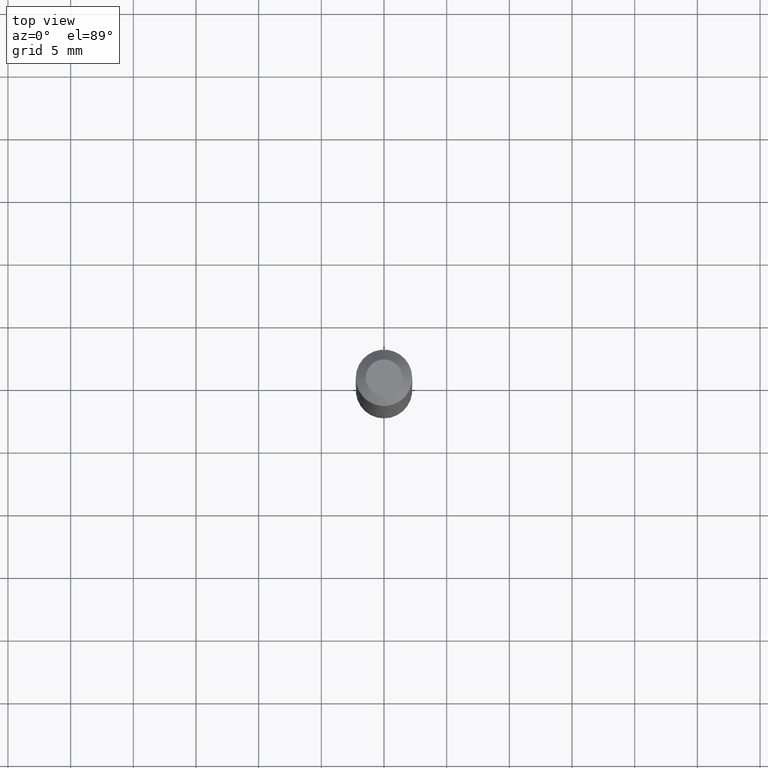
[diagram: clean part render]
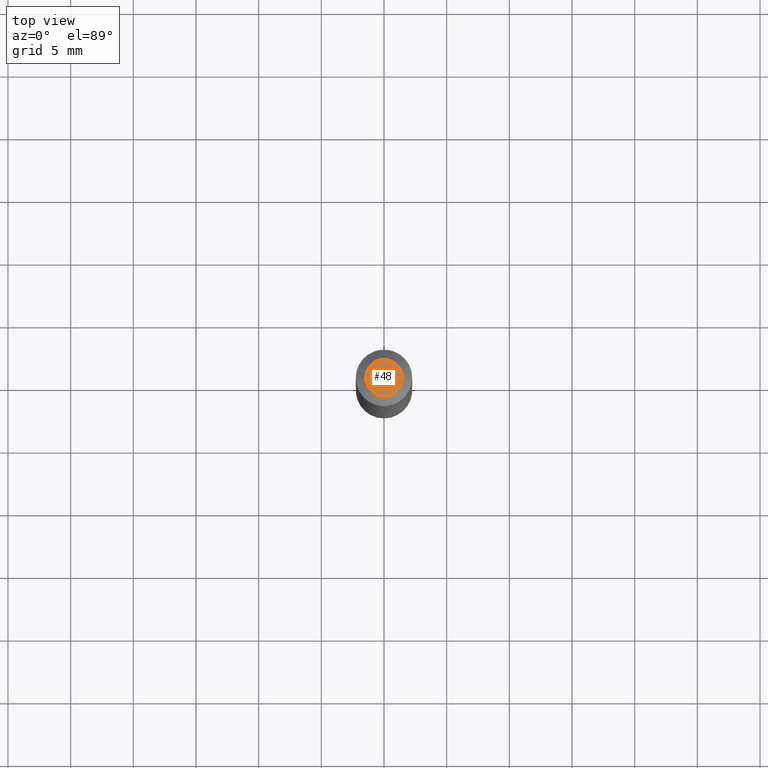
[diagram: same view with one face highlighted and labeled with its STEP entity id]
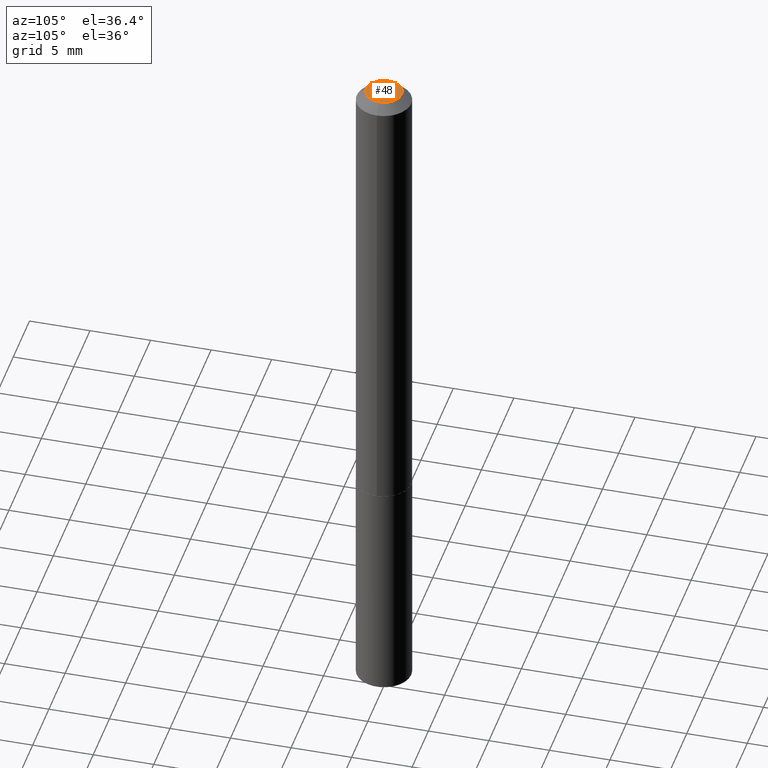
[diagram: same view with one face highlighted and labeled with its STEP entity id]
A machine part, top view. The second image highlights one B-rep face of the part: STEP entity #48.
A second angle (auxiliary view) of the same face is appended — the face is thin or edge-on in the first view.
In plain terms, the highlighted planar face has unit normal (0, -0, -1).
Its self-contained STEP definition (entity closure, byte-faithful):
#27 = CARTESIAN_POINT ( 'NONE',  ( -5.989671091818665474E-48, 8.551662891793964028E-34, 2.449293598294711584E-19 ) ) ;
#44 = AXIS2_PLACEMENT_3D ( 'NONE', #207, #117, #164 ) ;
#48 = ADVANCED_FACE ( 'NONE', ( #140 ), #145, .F. ) ;
#70 = CIRCLE ( 'NONE', #338, 0.05734999999999999820 ) ;
#77 = CARTESIAN_POINT ( 'NONE',  ( -2.994835545909332737E-48, 4.275831445896982014E-34, 1.224646799147355792E-19 ) ) ;
#78 = AXIS2_PLACEMENT_3D ( 'NONE', #77, #115, #84 ) ;
#84 = DIRECTION ( 'NONE',  ( -1.000000000000000000, 6.982962677686265922E-15, -4.876176775795935793E-29 ) ) ;
#91 = EDGE_CURVE ( 'NONE', #239, #307, #348, .T. ) ;
#115 = DIRECTION ( 'NONE',  ( 2.438088387897960049E-29, -3.491481338843145188E-15, -1.000000000000000000 ) ) ;
#117 = DIRECTION ( 'NONE',  ( -2.445468806185136597E-29, 3.491481338843145583E-15, 1.000000000000000000 ) ) ;
#140 = FACE_OUTER_BOUND ( 'NONE', #225, .T. ) ;
#141 = ORIENTED_EDGE ( 'NONE', *, *, #91, .T. ) ;
#145 = PLANE ( 'NONE',  #78 ) ;
#164 = DIRECTION ( 'NONE',  ( 1.000000000000000000, -6.982962677686266711E-15, 4.876171578127929944E-29 ) ) ;
#207 = CARTESIAN_POINT ( 'NONE',  ( -5.989671091818665474E-48, 8.551662891793964028E-34, 2.449293598294711584E-19 ) ) ;
#211 = CARTESIAN_POINT ( 'NONE',  ( -0.05734999999999999820, 4.550273054847307810E-16, 2.449293598264799484E-19 ) ) ;
#225 = EDGE_LOOP ( 'NONE', ( #141, #266 ) ) ;
#239 = VERTEX_POINT ( 'NONE', #211 ) ;
#266 = ORIENTED_EDGE ( 'NONE', *, *, #310, .T. ) ;
#276 = DIRECTION ( 'NONE',  ( -2.445468806185136597E-29, 3.491481338843145583E-15, 1.000000000000000000 ) ) ;
#307 = VERTEX_POINT ( 'NONE', #331 ) ;
#310 = EDGE_CURVE ( 'NONE', #307, #239, #70, .T. ) ;
#331 = CARTESIAN_POINT ( 'NONE',  ( 0.05734999999999999820, -5.551992373068019179E-16, 2.449293598328120690E-19 ) ) ;
#338 = AXIS2_PLACEMENT_3D ( 'NONE', #27, #276, #362 ) ;
#348 = CIRCLE ( 'NONE', #44, 0.05734999999999999820 ) ;
#362 = DIRECTION ( 'NONE',  ( 1.000000000000000000, -6.982962677686266711E-15, 4.876171578127929944E-29 ) ) ;